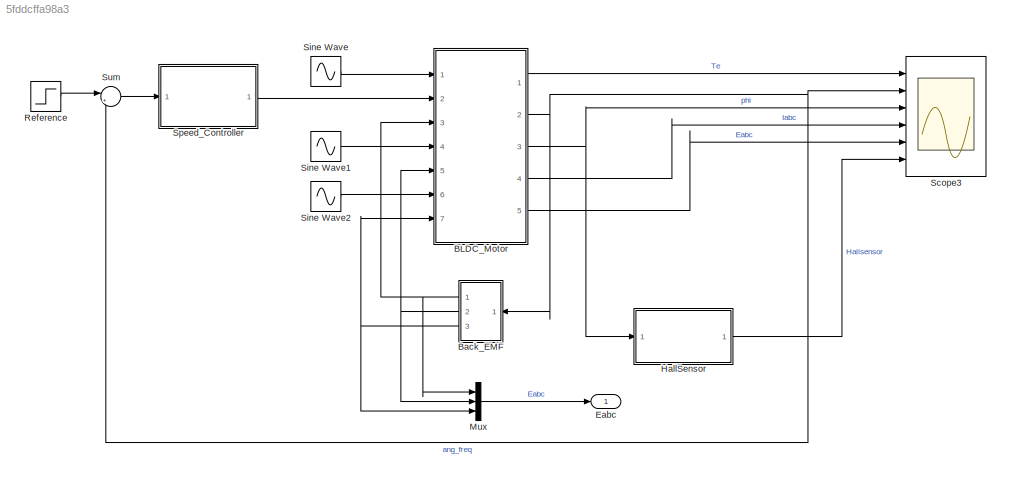
MODEL slx_5fddcffa98a3
KIND model
CONFIG AbsTol = auto
CONFIG EnableMultiTasking = off
CONFIG FixedStep = auto
CONFIG MaxStep = auto
CONFIG MinStep = auto
CONFIG RelTol = 1e-3
CONFIG SampleTimeConstraint = Unconstrained
CONFIG SolverName = VariableStepAuto
CONFIG StartTime = 0.0
CONFIG StopTime = 10
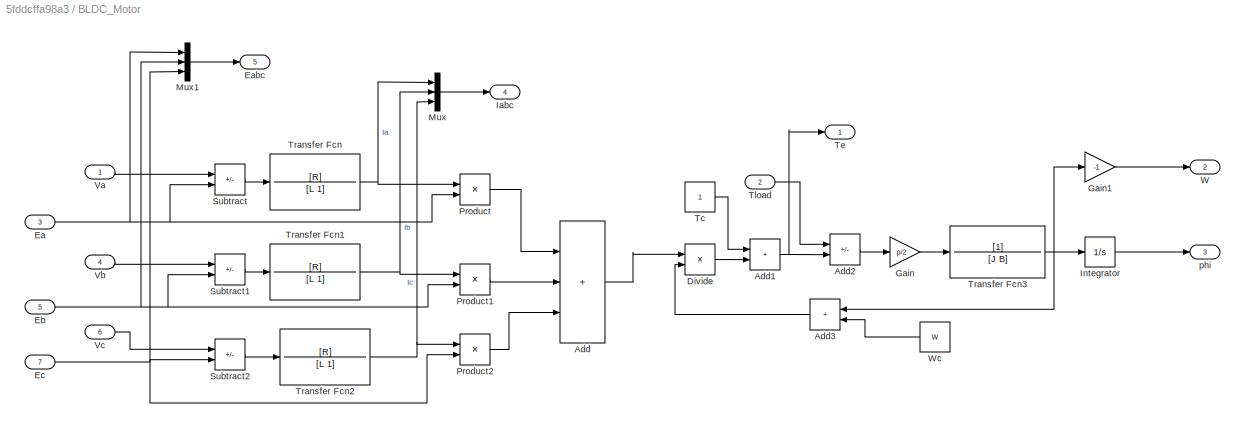
BLOCK [SubSystem] BLDC_Motor
  Ports = [7, 5]
  RequestExecContextInheritance = off
BLOCK [Sum] BLDC_Motor/Add
  IconShape = rectangular
  Inputs = +++
  Ports = [3, 1]
BLOCK [Sum] BLDC_Motor/Add1
  IconShape = rectangular
  Ports = [2, 1]
BLOCK [Sum] BLDC_Motor/Add2
  IconShape = rectangular
  Inputs = -+
  Ports = [2, 1]
BLOCK [Sum] BLDC_Motor/Add3
  IconShape = rectangular
  Ports = [2, 1]
BLOCK [Product] BLDC_Motor/Divide
  Inputs = */
  Ports = [2, 1]
BLOCK [Inport] BLDC_Motor/Ea
  Port = 3
BLOCK [Outport] BLDC_Motor/Eabc
  Port = 5
BLOCK [Inport] BLDC_Motor/Eb
  Port = 5
BLOCK [Inport] BLDC_Motor/Ec
  Port = 7
BLOCK [Gain] BLDC_Motor/Gain
  Gain = p/2
BLOCK [Gain] BLDC_Motor/Gain1
  Gain = -1
BLOCK [Outport] BLDC_Motor/Iabc
  Port = 4
BLOCK [Integrator] BLDC_Motor/Integrator
  Ports = [1, 1]
BLOCK [Mux] BLDC_Motor/Mux
  DisplayOption = bar
  Inputs = 3
  Ports = [3, 1]
BLOCK [Mux] BLDC_Motor/Mux1
  DisplayOption = bar
  Inputs = 3
  Ports = [3, 1]
BLOCK [Product] BLDC_Motor/Product
  Ports = [2, 1]
BLOCK [Product] BLDC_Motor/Product1
  Ports = [2, 1]
BLOCK [Product] BLDC_Motor/Product2
  Ports = [2, 1]
BLOCK [Sum] BLDC_Motor/Subtract
  IconShape = rectangular
  Inputs = +-
  Ports = [2, 1]
BLOCK [Sum] BLDC_Motor/Subtract1
  IconShape = rectangular
  Inputs = +-
  Ports = [2, 1]
BLOCK [Sum] BLDC_Motor/Subtract2
  IconShape = rectangular
  Inputs = +-
  Ports = [2, 1]
BLOCK [Constant] BLDC_Motor/Tc
BLOCK [Outport] BLDC_Motor/Te
BLOCK [Inport] BLDC_Motor/Tload
  Port = 2
BLOCK [TransferFcn] BLDC_Motor/Transfer Fcn
  Denominator = [L 1]
  Numerator = [R]
BLOCK [TransferFcn] BLDC_Motor/Transfer Fcn1
  Denominator = [L 1]
  Numerator = [R]
BLOCK [TransferFcn] BLDC_Motor/Transfer Fcn2
  Denominator = [L 1]
  Numerator = [R]
BLOCK [TransferFcn] BLDC_Motor/Transfer Fcn3
  Denominator = [J B]
BLOCK [Inport] BLDC_Motor/Va
BLOCK [Inport] BLDC_Motor/Vb
  Port = 4
BLOCK [Inport] BLDC_Motor/Vc
  Port = 6
BLOCK [Outport] BLDC_Motor/W
  Port = 2
BLOCK [Constant] BLDC_Motor/Wc
  Value = W
BLOCK [Outport] BLDC_Motor/phi
  Port = 3
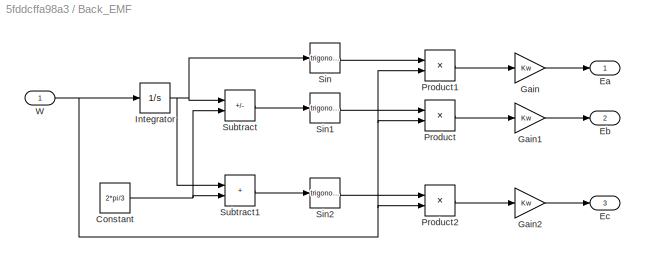
BLOCK [SubSystem] Back_EMF
  Ports = [1, 3]
  RequestExecContextInheritance = off
BLOCK [Constant] Back_EMF/Constant
  Value = 2*pi/3
BLOCK [Outport] Back_EMF/Ea
BLOCK [Outport] Back_EMF/Eb
  Port = 2
BLOCK [Outport] Back_EMF/Ec
  Port = 3
BLOCK [Gain] Back_EMF/Gain
  Gain = Kw
BLOCK [Gain] Back_EMF/Gain1
  Gain = Kw
BLOCK [Gain] Back_EMF/Gain2
  Gain = Kw
BLOCK [Integrator] Back_EMF/Integrator
  Ports = [1, 1]
BLOCK [Product] Back_EMF/Product
  Ports = [2, 1]
BLOCK [Product] Back_EMF/Product1
  Ports = [2, 1]
BLOCK [Product] Back_EMF/Product2
  Ports = [2, 1]
BLOCK [Trigonometry] Back_EMF/Sin
  Ports = [1, 1]
BLOCK [Trigonometry] Back_EMF/Sin1
  Ports = [1, 1]
BLOCK [Trigonometry] Back_EMF/Sin2
  Ports = [1, 1]
BLOCK [Sum] Back_EMF/Subtract
  IconShape = rectangular
  Inputs = +-
  Ports = [2, 1]
BLOCK [Sum] Back_EMF/Subtract1
  IconShape = rectangular
  Ports = [2, 1]
BLOCK [Inport] Back_EMF/W
BLOCK [Outport] Eabc
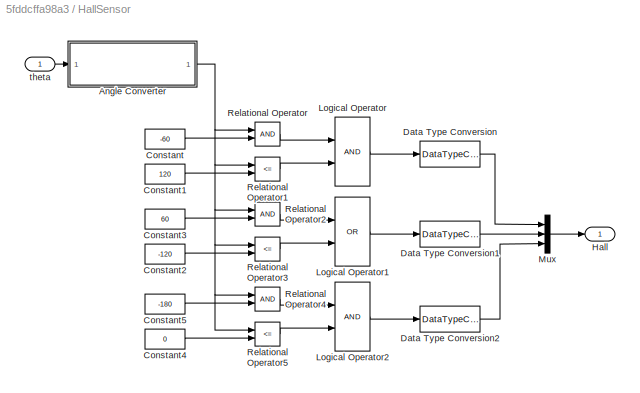
BLOCK [SubSystem] HallSensor
  Ports = [1, 1]
  RequestExecContextInheritance = off
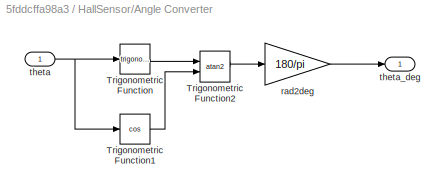
BLOCK [SubSystem] HallSensor/Angle Converter
  Ports = [1, 1]
  RequestExecContextInheritance = off
BLOCK [Trigonometry] HallSensor/Angle Converter/Trigonometric Function
  Ports = [1, 1]
BLOCK [Trigonometry] HallSensor/Angle Converter/Trigonometric Function1
  Operator = cos
  Ports = [1, 1]
BLOCK [Trigonometry] HallSensor/Angle Converter/Trigonometric Function2
  Operator = atan2
  Ports = [2, 1]
BLOCK [Gain] HallSensor/Angle Converter/rad2deg
  Gain = 180/pi
BLOCK [Inport] HallSensor/Angle Converter/theta
BLOCK [Outport] HallSensor/Angle Converter/theta_deg
BLOCK [Constant] HallSensor/Constant
  Value = -60
BLOCK [Constant] HallSensor/Constant1
  Value = 120
BLOCK [Constant] HallSensor/Constant2
  Value = -120
BLOCK [Constant] HallSensor/Constant3
  Value = 60
BLOCK [Constant] HallSensor/Constant4
  Value = 0
BLOCK [Constant] HallSensor/Constant5
  Value = -180
BLOCK [DataTypeConversion] HallSensor/Data Type Conversion
  RndMeth = Floor
  SaturateOnIntegerOverflow = off
BLOCK [DataTypeConversion] HallSensor/Data Type Conversion1
  RndMeth = Floor
  SaturateOnIntegerOverflow = off
BLOCK [DataTypeConversion] HallSensor/Data Type Conversion2
  RndMeth = Floor
  SaturateOnIntegerOverflow = off
BLOCK [Outport] HallSensor/Hall
BLOCK [Logic] HallSensor/Logical Operator
  AllPortsSameDT = off
  OutDataTypeStr = boolean
  Ports = [2, 1]
BLOCK [Logic] HallSensor/Logical Operator1
  AllPortsSameDT = off
  Operator = OR
  OutDataTypeStr = boolean
  Ports = [2, 1]
BLOCK [Logic] HallSensor/Logical Operator2
  AllPortsSameDT = off
  OutDataTypeStr = boolean
  Ports = [2, 1]
BLOCK [Mux] HallSensor/Mux
  DisplayOption = bar
  Inputs = 3
  Ports = [3, 1]
BLOCK [RelationalOperator] HallSensor/Relational Operator
  InputSameDT = off
  OutDataTypeStr = boolean
  Ports = [2, 1]
BLOCK [RelationalOperator] HallSensor/Relational Operator1
  InputSameDT = off
  Operator = <=
  OutDataTypeStr = boolean
  Ports = [2, 1]
BLOCK [RelationalOperator] HallSensor/Relational Operator2
  InputSameDT = off
  OutDataTypeStr = boolean
  Ports = [2, 1]
BLOCK [RelationalOperator] HallSensor/Relational Operator3
  InputSameDT = off
  Operator = <=
  OutDataTypeStr = boolean
  Ports = [2, 1]
BLOCK [RelationalOperator] HallSensor/Relational Operator4
  InputSameDT = off
  OutDataTypeStr = boolean
  Ports = [2, 1]
BLOCK [RelationalOperator] HallSensor/Relational Operator5
  InputSameDT = off
  Operator = <=
  OutDataTypeStr = boolean
  Ports = [2, 1]
BLOCK [Inport] HallSensor/theta
BLOCK [Mux] Mux
  DisplayOption = bar
  Inputs = 3
  Ports = [3, 1]
BLOCK [Step] Reference
  After = 10
  SampleTime = 0
BLOCK [Scope] Scope3
  Floating = off
  NumInputPorts = 6
  Ports = [6]
  ScopeSpecificationString = Simulink.scopes.TimeScopeBlockCfg('CurrentConfiguration', extmgr.ConfigurationSet(extmgr.Configuration('Core','General UI',true),extmgr.Configuration('Core','Source UI',true),extmgr.Configuration('Sources','WiredSimulink',true,'DataLoggingVariableName','ScopeData3'),extmgr.Configuration('Visuals','Time Domain',true,'SerializedDisplays',{struct('MinYLimReal','0.99496','MaxYLimReal','1.00498','YLabe...<+6331ch>
BLOCK [Sin] Sine Wave
  Amplitude = 2
  Frequency = 20*h2r
  Ports = [0, 1]
  SampleTime = 0
BLOCK [Sin] Sine Wave1
  Amplitude = 2
  Frequency = 20*h2r
  Phase = 2*pi/3
  Ports = [0, 1]
  SampleTime = 0
BLOCK [Sin] Sine Wave2
  Amplitude = 2
  Frequency = 20*h2r
  Phase = -2*pi/3
  Ports = [0, 1]
  SampleTime = 0
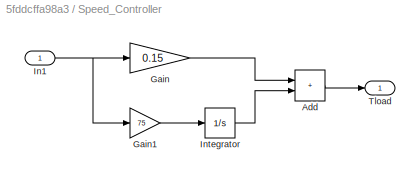
BLOCK [SubSystem] Speed_Controller
  Ports = [1, 1]
  RequestExecContextInheritance = off
BLOCK [Sum] Speed_Controller/Add
  IconShape = rectangular
  Ports = [2, 1]
BLOCK [Gain] Speed_Controller/Gain
  Gain = 0.15
BLOCK [Gain] Speed_Controller/Gain1
  Gain = 75
BLOCK [Inport] Speed_Controller/In1
BLOCK [Integrator] Speed_Controller/Integrator
  Ports = [1, 1]
BLOCK [Outport] Speed_Controller/Tload
BLOCK [Sum] Sum
  Inputs = |+-
  Ports = [2, 1]
NET BLDC_Motor/Add1:1 -> BLDC_Motor/Add2:2, BLDC_Motor/Te:1
LINE BLDC_Motor/Add2:1 -> BLDC_Motor/Gain:1
LINE BLDC_Motor/Add3:1 -> BLDC_Motor/Divide:2
LINE BLDC_Motor/Add:1 -> BLDC_Motor/Divide:1
LINE BLDC_Motor/Divide:1 -> BLDC_Motor/Add1:2
NET BLDC_Motor/Ea:1 -> BLDC_Motor/Mux1:1, BLDC_Motor/Product:2, BLDC_Motor/Subtract:2
NET BLDC_Motor/Eb:1 -> BLDC_Motor/Mux1:2, BLDC_Motor/Product1:2, BLDC_Motor/Subtract1:2
NET BLDC_Motor/Ec:1 -> BLDC_Motor/Mux1:3, BLDC_Motor/Product2:2, BLDC_Motor/Subtract2:2
LINE BLDC_Motor/Gain1:1 -> BLDC_Motor/W:1
LINE BLDC_Motor/Gain:1 -> BLDC_Motor/Transfer Fcn3:1
LINE BLDC_Motor/Integrator:1 -> BLDC_Motor/phi:1
LINE BLDC_Motor/Mux1:1 -> BLDC_Motor/Eabc:1
LINE BLDC_Motor/Mux:1 -> BLDC_Motor/Iabc:1
LINE BLDC_Motor/Product1:1 -> BLDC_Motor/Add:2
LINE BLDC_Motor/Product2:1 -> BLDC_Motor/Add:3
LINE BLDC_Motor/Product:1 -> BLDC_Motor/Add:1
LINE BLDC_Motor/Subtract1:1 -> BLDC_Motor/Transfer Fcn1:1
LINE BLDC_Motor/Subtract2:1 -> BLDC_Motor/Transfer Fcn2:1
LINE BLDC_Motor/Subtract:1 -> BLDC_Motor/Transfer Fcn:1
LINE BLDC_Motor/Tc:1 -> BLDC_Motor/Add1:1
LINE BLDC_Motor/Tload:1 -> BLDC_Motor/Add2:1
NET BLDC_Motor/Transfer Fcn1:1 -> BLDC_Motor/Mux:2, BLDC_Motor/Product1:1
NET BLDC_Motor/Transfer Fcn2:1 -> BLDC_Motor/Mux:3, BLDC_Motor/Product2:1
NET BLDC_Motor/Transfer Fcn3:1 -> BLDC_Motor/Add3:1, BLDC_Motor/Gain1:1, BLDC_Motor/Integrator:1
NET BLDC_Motor/Transfer Fcn:1 -> BLDC_Motor/Mux:1, BLDC_Motor/Product:1
LINE BLDC_Motor/Va:1 -> BLDC_Motor/Subtract:1
LINE BLDC_Motor/Vb:1 -> BLDC_Motor/Subtract1:1
LINE BLDC_Motor/Vc:1 -> BLDC_Motor/Subtract2:1
LINE BLDC_Motor/Wc:1 -> BLDC_Motor/Add3:2
LINE BLDC_Motor:1 -> Scope3:1
NET BLDC_Motor:2 -> Back_EMF:1, Scope3:2, Sum:2
NET BLDC_Motor:3 -> HallSensor:1, Scope3:3
LINE BLDC_Motor:4 -> Scope3:4
LINE BLDC_Motor:5 -> Scope3:5
NET Back_EMF/Constant:1 -> Back_EMF/Subtract1:2, Back_EMF/Subtract:2
LINE Back_EMF/Gain1:1 -> Back_EMF/Eb:1
LINE Back_EMF/Gain2:1 -> Back_EMF/Ec:1
LINE Back_EMF/Gain:1 -> Back_EMF/Ea:1
NET Back_EMF/Integrator:1 -> Back_EMF/Sin:1, Back_EMF/Subtract1:1, Back_EMF/Subtract:1
LINE Back_EMF/Product1:1 -> Back_EMF/Gain:1
LINE Back_EMF/Product2:1 -> Back_EMF/Gain2:1
LINE Back_EMF/Product:1 -> Back_EMF/Gain1:1
LINE Back_EMF/Sin1:1 -> Back_EMF/Product:1
LINE Back_EMF/Sin2:1 -> Back_EMF/Product2:1
LINE Back_EMF/Sin:1 -> Back_EMF/Product1:1
LINE Back_EMF/Subtract1:1 -> Back_EMF/Sin2:1
LINE Back_EMF/Subtract:1 -> Back_EMF/Sin1:1
NET Back_EMF/W:1 -> Back_EMF/Integrator:1, Back_EMF/Product1:2, Back_EMF/Product2:2, Back_EMF/Product:2
NET Back_EMF:1 -> BLDC_Motor:3, Mux:1
NET Back_EMF:2 -> BLDC_Motor:5, Mux:2
NET Back_EMF:3 -> BLDC_Motor:7, Mux:3
LINE HallSensor/Angle Converter/Trigonometric Function1:1 -> HallSensor/Angle Converter/Trigonometric Function2:2
LINE HallSensor/Angle Converter/Trigonometric Function2:1 -> HallSensor/Angle Converter/rad2deg:1
LINE HallSensor/Angle Converter/Trigonometric Function:1 -> HallSensor/Angle Converter/Trigonometric Function2:1
LINE HallSensor/Angle Converter/rad2deg:1 -> HallSensor/Angle Converter/theta_deg:1
NET HallSensor/Angle Converter/theta:1 -> HallSensor/Angle Converter/Trigonometric Function1:1, HallSensor/Angle Converter/Trigonometric Function:1
NET HallSensor/Angle Converter:1 -> HallSensor/Relational Operator1:1, HallSensor/Relational Operator2:1, HallSensor/Relational Operator3:1, HallSensor/Relational Operator4:1, HallSensor/Relational Operator5:1, HallSensor/Relational Operator:1
LINE HallSensor/Constant1:1 -> HallSensor/Relational Operator1:2
LINE HallSensor/Constant2:1 -> HallSensor/Relational Operator3:2
LINE HallSensor/Constant3:1 -> HallSensor/Relational Operator2:2
LINE HallSensor/Constant4:1 -> HallSensor/Relational Operator5:2
LINE HallSensor/Constant5:1 -> HallSensor/Relational Operator4:2
LINE HallSensor/Constant:1 -> HallSensor/Relational Operator:2
LINE HallSensor/Data Type Conversion1:1 -> HallSensor/Mux:2
LINE HallSensor/Data Type Conversion2:1 -> HallSensor/Mux:3
LINE HallSensor/Data Type Conversion:1 -> HallSensor/Mux:1
LINE HallSensor/Logical Operator1:1 -> HallSensor/Data Type Conversion1:1
LINE HallSensor/Logical Operator2:1 -> HallSensor/Data Type Conversion2:1
LINE HallSensor/Logical Operator:1 -> HallSensor/Data Type Conversion:1
LINE HallSensor/Mux:1 -> HallSensor/Hall:1
LINE HallSensor/Relational Operator1:1 -> HallSensor/Logical Operator:2
LINE HallSensor/Relational Operator2:1 -> HallSensor/Logical Operator1:1
LINE HallSensor/Relational Operator3:1 -> HallSensor/Logical Operator1:2
LINE HallSensor/Relational Operator4:1 -> HallSensor/Logical Operator2:1
LINE HallSensor/Relational Operator5:1 -> HallSensor/Logical Operator2:2
LINE HallSensor/Relational Operator:1 -> HallSensor/Logical Operator:1
LINE HallSensor/theta:1 -> HallSensor/Angle Converter:1
LINE HallSensor:1 -> Scope3:6
LINE Mux:1 -> Eabc:1
LINE Reference:1 -> Sum:1
LINE Sine Wave1:1 -> BLDC_Motor:4
LINE Sine Wave2:1 -> BLDC_Motor:6
LINE Sine Wave:1 -> BLDC_Motor:1
LINE Speed_Controller/Add:1 -> Speed_Controller/Tload:1
LINE Speed_Controller/Gain1:1 -> Speed_Controller/Integrator:1
LINE Speed_Controller/Gain:1 -> Speed_Controller/Add:1
NET Speed_Controller/In1:1 -> Speed_Controller/Gain1:1, Speed_Controller/Gain:1
LINE Speed_Controller/Integrator:1 -> Speed_Controller/Add:2
LINE Speed_Controller:1 -> BLDC_Motor:2
LINE Sum:1 -> Speed_Controller:1
note: NET lines group one-source signal fan-out (src -> all destinations, sorted); 1:1 wires keep LINE
